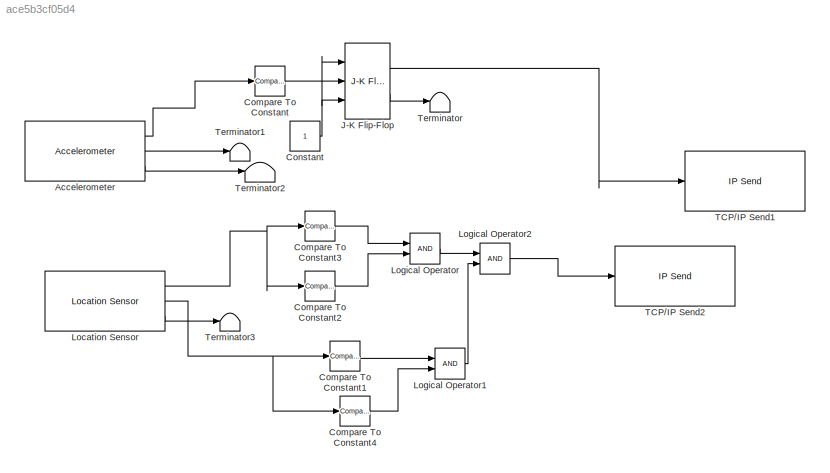
MODEL slx_ace5b3cf05d4
KIND model
CONFIG AbsTol = auto
CONFIG EnableMultiTasking = off
CONFIG FixedStep = auto
CONFIG MaxStep = auto
CONFIG MinStep = auto
CONFIG RelTol = 1e-3
CONFIG SampleTimeConstraint = Unconstrained
CONFIG Solver = FixedStepAuto
CONFIG SolverName = FixedStepAuto
CONFIG StartTime = 0.0
CONFIG StopTime = inf
BLOCK [Reference] Accelerometer  REF=androidsensorlib/Accelerometer
  Ports = [0, 3]
  SourceBlock = androidsensorlib/Accelerometer
  SourceProductBaseCode = ANDROID
  SourceProductName = Simulink Support Package for Android Devices
  SourceType = codertarget.internal.androidAccelerometer
BLOCK [Reference] Compare To Constant  REF=simulink/Logic and Bit
Operations/Compare
To Constant
  Ports = [1, 1]
  SourceBlock = simulink/Logic and Bit\nOperations/Compare\nTo Constant
  SourceProductBaseCode = SL
  SourceProductName = Simulink
  SourceType = Compare To Constant
BLOCK [Reference] Compare To Constant1  REF=simulink/Logic and Bit
Operations/Compare
To Constant
  Ports = [1, 1]
  SourceBlock = simulink/Logic and Bit\nOperations/Compare\nTo Constant
  SourceProductBaseCode = SL
  SourceProductName = Simulink
  SourceType = Compare To Constant
BLOCK [Reference] Compare To Constant2  REF=simulink/Logic and Bit
Operations/Compare
To Constant
  Ports = [1, 1]
  SourceBlock = simulink/Logic and Bit\nOperations/Compare\nTo Constant
  SourceProductBaseCode = SL
  SourceProductName = Simulink
  SourceType = Compare To Constant
BLOCK [Reference] Compare To Constant3  REF=simulink/Logic and Bit
Operations/Compare
To Constant
  Ports = [1, 1]
  SourceBlock = simulink/Logic and Bit\nOperations/Compare\nTo Constant
  SourceProductBaseCode = SL
  SourceProductName = Simulink
  SourceType = Compare To Constant
BLOCK [Reference] Compare To Constant4  REF=simulink/Logic and Bit
Operations/Compare
To Constant
  Ports = [1, 1]
  SourceBlock = simulink/Logic and Bit\nOperations/Compare\nTo Constant
  SourceProductBaseCode = SL
  SourceProductName = Simulink
  SourceType = Compare To Constant
BLOCK [Constant] Constant
  OutDataTypeStr = boolean
BLOCK [Reference] J-K Flip-Flop  REF=simulink_extras/Flip Flops/J-K
Flip-Flop
  Ports = [3, 2]
  SourceBlock = simulink_extras/Flip Flops/J-K\nFlip-Flop
  SourceProductBaseCode = SL
  SourceProductName = Simulink
  SourceType = JKFlipFlop
BLOCK [Reference] Location Sensor  REF=androidsensorlib/Location Sensor
  Ports = [0, 3]
  SourceBlock = androidsensorlib/Location Sensor
  SourceProductBaseCode = ANDROID
  SourceProductName = Simulink Support Package for Android Devices
  SourceType = codertarget.internal.androidLocation
BLOCK [Logic] Logical Operator
  AllPortsSameDT = off
  OutDataTypeStr = boolean
  Ports = [2, 1]
BLOCK [Logic] Logical Operator1
  AllPortsSameDT = off
  OutDataTypeStr = boolean
  Ports = [2, 1]
BLOCK [Logic] Logical Operator2
  AllPortsSameDT = off
  OutDataTypeStr = boolean
  Ports = [2, 1]
BLOCK [Reference] TCP//IP Send1  REF=androidcommunicationlib/TCP//IP Send
  Ports = [1]
  SourceBlock = androidcommunicationlib/TCP//IP Send
  SourceProductBaseCode = ANDROID
  SourceProductName = Simulink Support Package for Android Devices
  SourceType = codertarget.internal.androidTCPSend
BLOCK [Reference] TCP//IP Send2  REF=androidcommunicationlib/TCP//IP Send
  Ports = [1]
  SourceBlock = androidcommunicationlib/TCP//IP Send
  SourceProductBaseCode = ANDROID
  SourceProductName = Simulink Support Package for Android Devices
  SourceType = codertarget.internal.androidTCPSend
BLOCK [Terminator] Terminator
BLOCK [Terminator] Terminator1
BLOCK [Terminator] Terminator2
BLOCK [Terminator] Terminator3
LINE Accelerometer:1 -> Compare To Constant:1
LINE Accelerometer:2 -> Terminator1:1
LINE Accelerometer:3 -> Terminator2:1
LINE Compare To Constant1:1 -> Logical Operator1:1
LINE Compare To Constant2:1 -> Logical Operator:2
LINE Compare To Constant3:1 -> Logical Operator:1
LINE Compare To Constant4:1 -> Logical Operator1:2
LINE Compare To Constant:1 -> J-K Flip-Flop:2
NET Constant:1 -> J-K Flip-Flop:1, J-K Flip-Flop:3
LINE J-K Flip-Flop:1 -> TCP//IP Send1:1
LINE J-K Flip-Flop:2 -> Terminator:1
NET Location Sensor:1 -> Compare To Constant2:1, Compare To Constant3:1
NET Location Sensor:2 -> Compare To Constant1:1, Compare To Constant4:1
LINE Location Sensor:3 -> Terminator3:1
LINE Logical Operator1:1 -> Logical Operator2:2
LINE Logical Operator2:1 -> TCP//IP Send2:1
LINE Logical Operator:1 -> Logical Operator2:1
note: NET lines group one-source signal fan-out (src -> all destinations, sorted); 1:1 wires keep LINE
